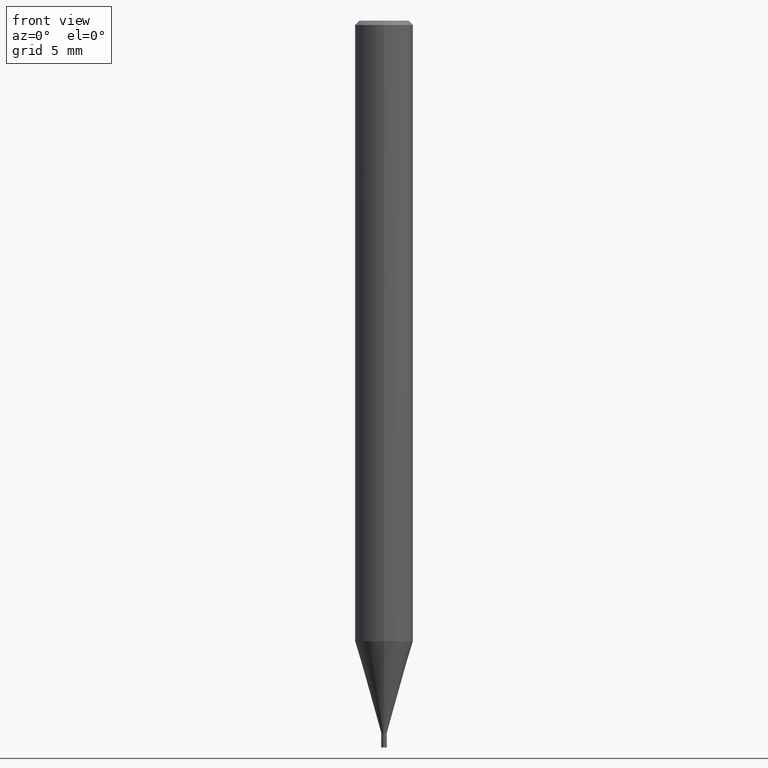
[diagram: clean part render]
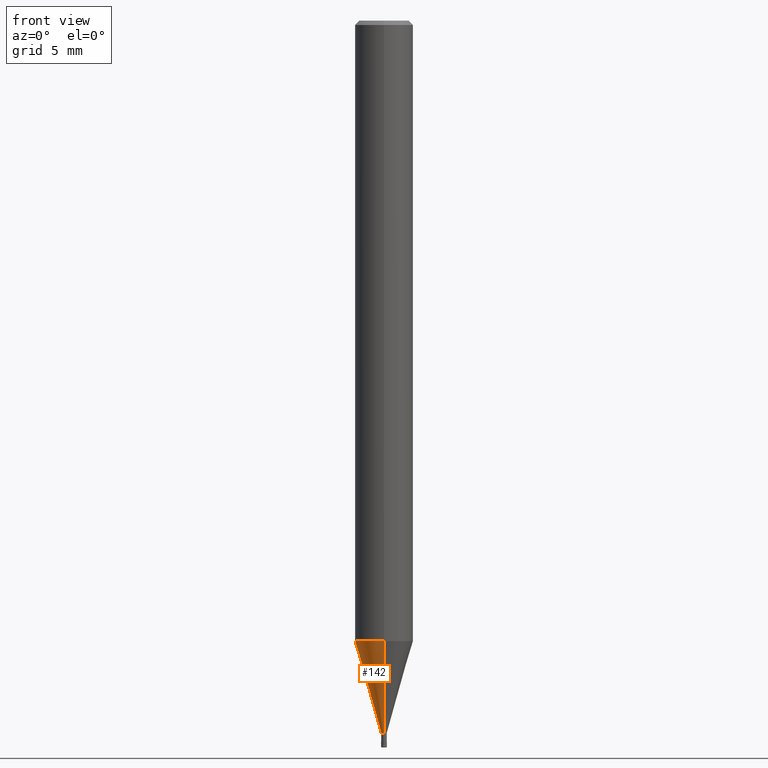
[diagram: same view with one face highlighted and labeled with its STEP entity id]
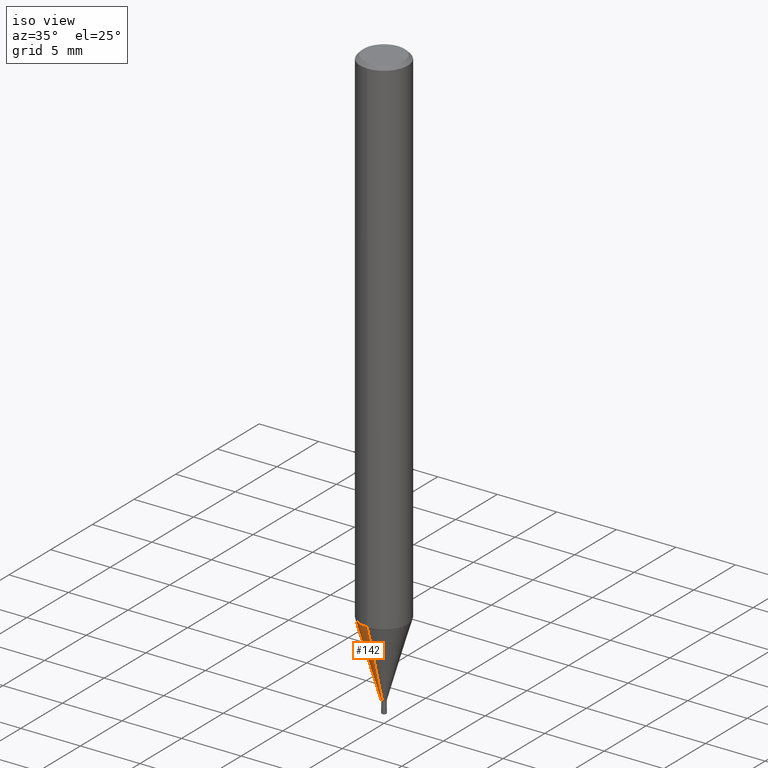
[diagram: same view with one face highlighted and labeled with its STEP entity id]
A machine part, front view. The second image highlights one B-rep face of the part: STEP entity #142.
A second angle (iso view) of the same face is appended — the face is thin or edge-on in the first view.
In plain terms, the highlighted conical surface has half-angle 16.001 deg.
Its self-contained STEP definition (entity closure, byte-faithful):
#104=EDGE_CURVE('',#138,#226,#257,.T.);
#138=VERTEX_POINT('',#297);
#142=ADVANCED_FACE('',(#301),#302,.T.);
#186=EDGE_CURVE('',#190,#192,#352,.T.);
#190=VERTEX_POINT('',#357);
#192=VERTEX_POINT('',#359);
#224=EDGE_CURVE('',#190,#226,#395,.T.);
#226=VERTEX_POINT('',#397);
#230=EDGE_CURVE('',#192,#138,#401,.T.);
#257=LINE('',#421,#422);
#297=CARTESIAN_POINT('',(0.0,1.99995,-42.688));
#301=FACE_OUTER_BOUND('',#474,.T.);
#302=CONICAL_SURFACE('',#475,1.09495,0.279261921280279);
#352=LINE('',#542,#543);
#357=CARTESIAN_POINT('',(2.3261397690856E-017,-0.18995,-49.0));
#359=CARTESIAN_POINT('',(2.44915147732706E-016,-1.99995,-42.688));
#395=CIRCLE('',#592,0.18995);
#397=CARTESIAN_POINT('',(0.0,0.18995,-49.0));
#401=CIRCLE('',#601,1.99995);
#421=CARTESIAN_POINT('',(-1.34088272711781E-016,1.09495,-45.844));
#422=VECTOR('',#606,1.0);
#474=EDGE_LOOP('',(#666,#667,#668,#669));
#475=AXIS2_PLACEMENT_3D('',#670,#671,#672);
#542=CARTESIAN_POINT('',(1.34088272711781E-016,-1.09495,-45.844));
#543=VECTOR('',#739,1.0);
#592=AXIS2_PLACEMENT_3D('',#796,#797,#798);
#601=AXIS2_PLACEMENT_3D('',#800,#801,#802);
#606=DIRECTION('',(3.37558135426109E-017,-0.275646238787252,-0.961259148743169));
#666=ORIENTED_EDGE('',*,*,#104,.T.);
#667=ORIENTED_EDGE('',*,*,#224,.F.);
#668=ORIENTED_EDGE('',*,*,#186,.T.);
#669=ORIENTED_EDGE('',*,*,#230,.T.);
#670=CARTESIAN_POINT('',(0.0,0.0,-45.844));
#671=DIRECTION('',(-0.0,-0.0,1.0));
#672=DIRECTION('',(0.0,1.0,0.0));
#739=DIRECTION('',(3.37558135426109E-017,-0.275646238787252,0.961259148743169));
#796=CARTESIAN_POINT('',(0.0,0.0,-49.0));
#797=DIRECTION('',(0.0,0.0,-1.0));
#798=DIRECTION('',(0.0,1.0,0.0));
#800=CARTESIAN_POINT('',(0.0,0.0,-42.688));
#801=DIRECTION('',(0.0,0.0,-1.0));
#802=DIRECTION('',(0.0,1.0,0.0));